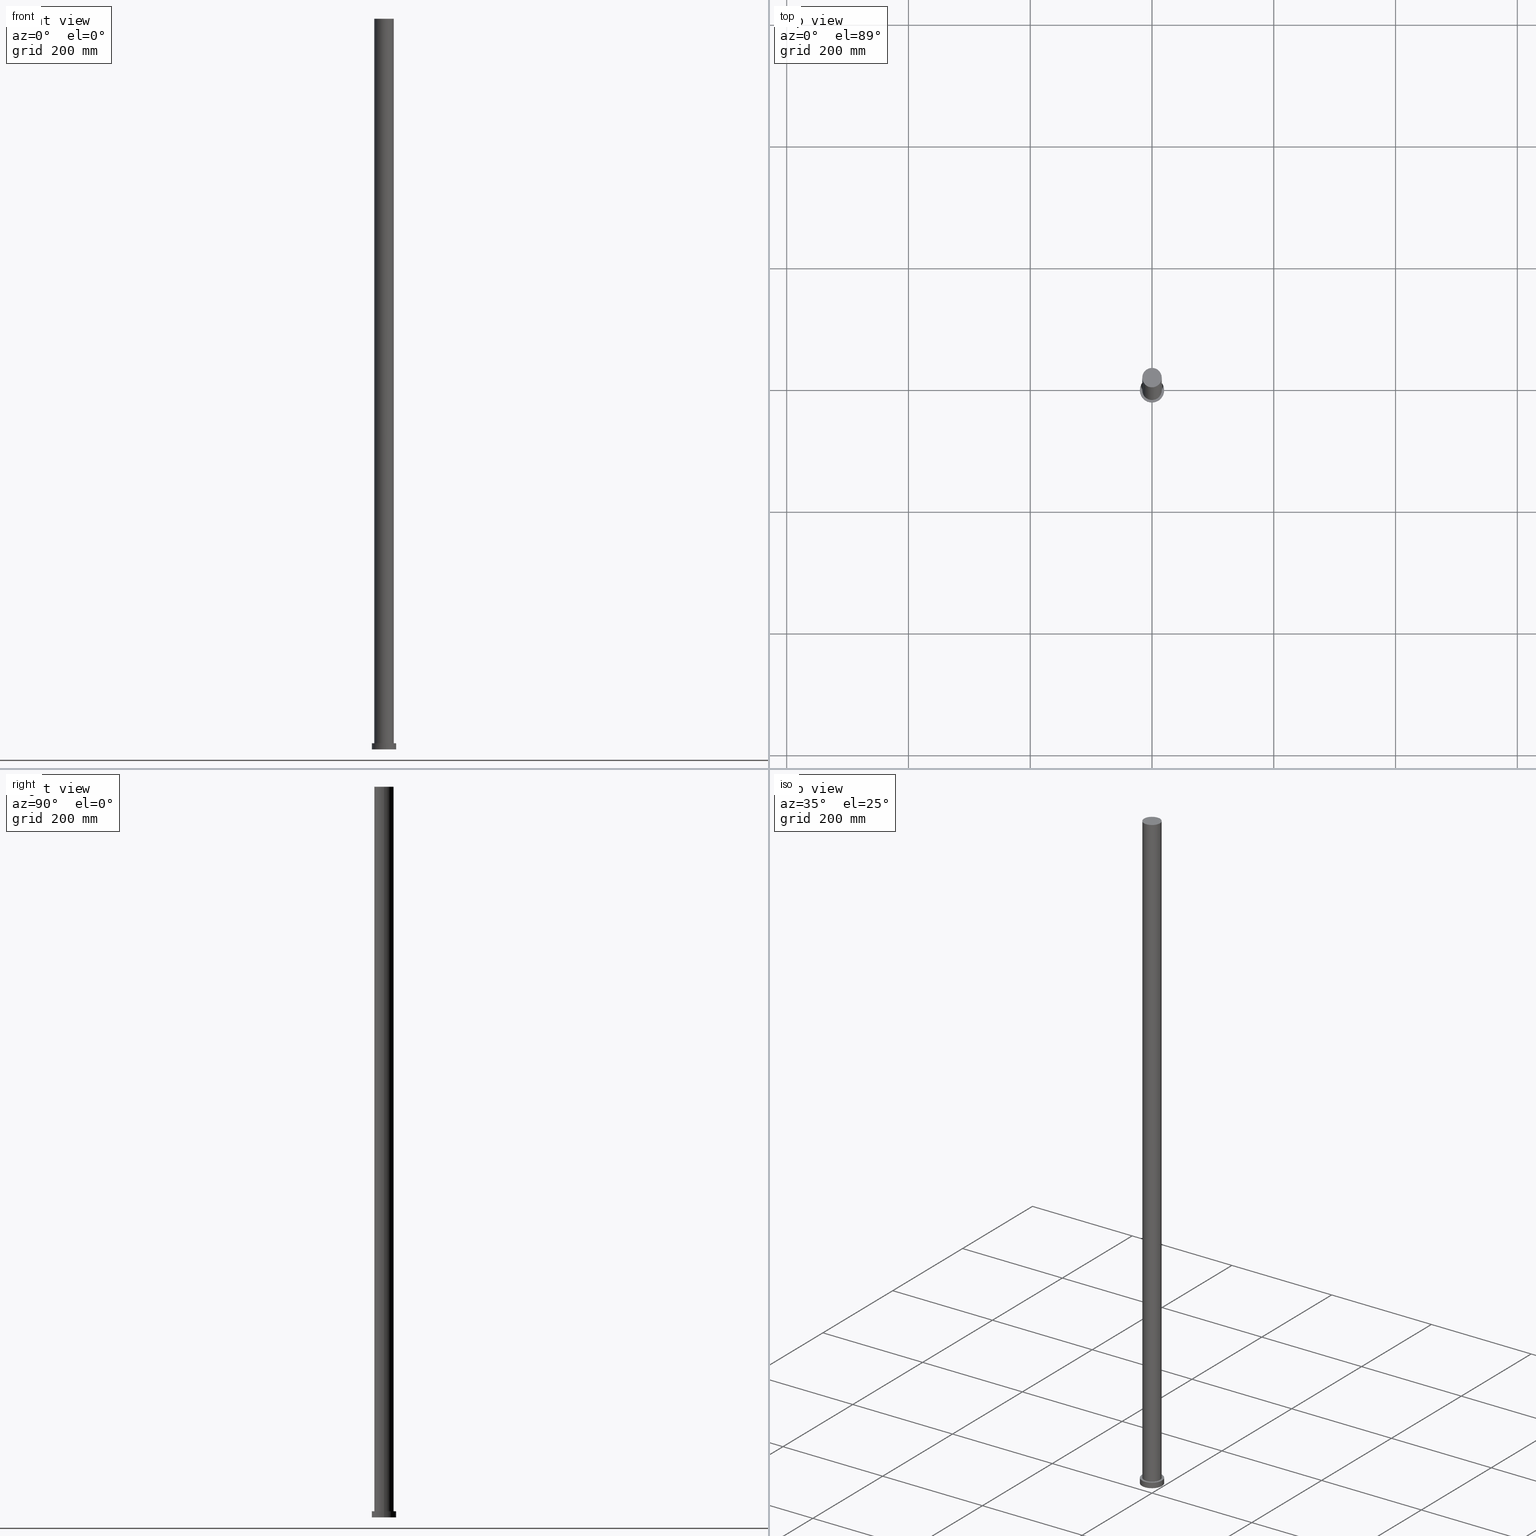
[diagram: canonical four-view strip — front | top / right | iso, engineering-drawing reading convention]
A machine part, canonical four-view strip (front | top / right | iso — engineering-drawing reading convention). The complete STEP part file that produces these views, byte-faithful:
ISO-10303-21;
HEADER;
FILE_DESCRIPTION (( 'STEP AP203' ),
    '1' );
FILE_NAME ('3a21.STEP',
    '2023-02-12T10:05:44',
    ( '' ),
    ( '' ),
    'SwSTEP 2.0',
    'SolidWorks 2019',
    '' );
FILE_SCHEMA (( 'CONFIG_CONTROL_DESIGN' ));
ENDSEC;

DATA;
#1 = PERSON_AND_ORGANIZATION ( #19, #49 ) ;
#2 = COORDINATED_UNIVERSAL_TIME_OFFSET ( 1, 0, .AHEAD. ) ;
#3 = DATE_TIME_ROLE ( 'creation_date' ) ;
#4 = AXIS2_PLACEMENT_3D ( 'NONE', #105, #143, #87 ) ;
#5 = PRODUCT ( '3a21', '3a21', '', ( #38 ) ) ;
#6 = COORDINATED_UNIVERSAL_TIME_OFFSET ( 1, 0, .AHEAD. ) ;
#7 = ORIENTED_EDGE ( 'NONE', *, *, #228, .T. ) ;
#8 = APPROVAL_DATE_TIME ( #202, #27 ) ;
#9 = VERTEX_POINT ( 'NONE', #102 ) ;
#10 = ORIENTED_EDGE ( 'NONE', *, *, #204, .T. ) ;
#11 = ORIENTED_EDGE ( 'NONE', *, *, #128, .T. ) ;
#12 = DIRECTION ( 'NONE',  ( 1.000000000000000000, 0.000000000000000000, 0.000000000000000000 ) ) ;
#13 = DIRECTION ( 'NONE',  ( 1.000000000000000000, 0.000000000000000000, -0.000000000000000000 ) ) ;
#14 = APPROVAL_PERSON_ORGANIZATION ( #1, #233, #135 ) ;
#15 = CYLINDRICAL_SURFACE ( 'NONE', #182, 16.00000000000000000 ) ;
#16 = PLANE ( 'NONE',  #214 ) ;
#17 = CARTESIAN_POINT ( 'NONE',  ( 0.000000000000000000, 0.000000000000000000, 10.00000000000000000 ) ) ;
#18 = APPROVAL_ROLE ( '' ) ;
#19 = PERSON ( 'NEUR�EN�', 'NEUR�EN�', 'NEUR�EN�', ('NEUR�EN�'), ('NEUR�EN�'), ('NEUR�EN�') ) ;
#20 = VERTEX_POINT ( 'NONE', #248 ) ;
#21 = DIRECTION ( 'NONE',  ( 0.000000000000000000, 0.000000000000000000, 1.000000000000000000 ) ) ;
#22 = ORIENTED_EDGE ( 'NONE', *, *, #137, .T. ) ;
#23 = EDGE_LOOP ( 'NONE', ( #7, #222 ) ) ;
#24 = ORIENTED_EDGE ( 'NONE', *, *, #139, .T. ) ;
#25 = CARTESIAN_POINT ( 'NONE',  ( 0.000000000000000000, 0.000000000000000000, 10.00000000000000000 ) ) ;
#26 = LINE ( 'NONE', #106, #206 ) ;
#27 = APPROVAL ( #247, 'NEUR�EN�' ) ;
#28 = CYLINDRICAL_SURFACE ( 'NONE', #217, 20.00000000000000000 ) ;
#29 = DIRECTION ( 'NONE',  ( -1.000000000000000000, 0.000000000000000000, 0.000000000000000000 ) ) ;
#30 = DIRECTION ( 'NONE',  ( -0.000000000000000000, -0.000000000000000000, -1.000000000000000000 ) ) ;
#31 = APPROVAL_STATUS ( 'not_yet_approved' ) ;
#32 = APPROVAL_PERSON_ORGANIZATION ( #181, #27, #199 ) ;
#33 = PERSON_AND_ORGANIZATION ( #19, #49 ) ;
#34 = ADVANCED_FACE ( 'NONE', ( #219, #243 ), #223, .T. ) ;
#35 = PERSON_AND_ORGANIZATION ( #19, #49 ) ;
#36 = LOCAL_TIME ( 11, 5, 44.00000000000000000, #161 ) ;
#37 = AXIS2_PLACEMENT_3D ( 'NONE', #227, #127, #46 ) ;
#38 = MECHANICAL_CONTEXT ( 'NONE', #153, 'mechanical' ) ;
#39 = ORIENTED_EDGE ( 'NONE', *, *, #113, .F. ) ;
#40 = CALENDAR_DATE ( 2023, 12, 2 ) ;
#41 = DIRECTION ( 'NONE',  ( 1.000000000000000000, 0.000000000000000000, -0.000000000000000000 ) ) ;
#42 = ORIENTED_EDGE ( 'NONE', *, *, #170, .T. ) ;
#43 = ORIENTED_EDGE ( 'NONE', *, *, #137, .F. ) ;
#44 = DIRECTION ( 'NONE',  ( 0.000000000000000000, 0.000000000000000000, 1.000000000000000000 ) ) ;
#45 = LOCAL_TIME ( 11, 5, 44.00000000000000000, #6 ) ;
#46 = DIRECTION ( 'NONE',  ( 1.000000000000000000, 0.000000000000000000, 0.000000000000000000 ) ) ;
#47 = DIRECTION ( 'NONE',  ( -1.000000000000000000, 0.000000000000000000, 0.000000000000000000 ) ) ;
#48 = CARTESIAN_POINT ( 'NONE',  ( 0.000000000000000000, 0.000000000000000000, 10.00000000000000000 ) ) ;
#49 = ORGANIZATION ( 'NEUR�EN�', 'NEUR�EN�', '' ) ;
#50 = CARTESIAN_POINT ( 'NONE',  ( 0.000000000000000000, 0.000000000000000000, 1200.000000000000000 ) ) ;
#51 = CARTESIAN_POINT ( 'NONE',  ( 16.00000000000000000, 1.959434878635765131E-15, 10.00000000000000000 ) ) ;
#52 = DIRECTION ( 'NONE',  ( 0.000000000000000000, 0.000000000000000000, 1.000000000000000000 ) ) ;
#53 = AXIS2_PLACEMENT_3D ( 'NONE', #209, #187, #29 ) ;
#54 = VECTOR ( 'NONE', #226, 1000.000000000000000 ) ;
#55 = APPROVAL_STATUS ( 'not_yet_approved' ) ;
#56 = COORDINATED_UNIVERSAL_TIME_OFFSET ( 1, 0, .AHEAD. ) ;
#57 =( NAMED_UNIT ( * ) PLANE_ANGLE_UNIT ( ) SI_UNIT ( $, .RADIAN. ) );
#58 = DIRECTION ( 'NONE',  ( -0.000000000000000000, -0.000000000000000000, -1.000000000000000000 ) ) ;
#59 = CC_DESIGN_PERSON_AND_ORGANIZATION_ASSIGNMENT ( #194, #175, ( #149 ) ) ;
#60 = VERTEX_POINT ( 'NONE', #244 ) ;
#61 = DATE_TIME_ROLE ( 'classification_date' ) ;
#62 = ORIENTED_EDGE ( 'NONE', *, *, #139, .F. ) ;
#63 = AXIS2_PLACEMENT_3D ( 'NONE', #17, #125, #91 ) ;
#64 = CC_DESIGN_SECURITY_CLASSIFICATION ( #231, ( #118 ) ) ;
#65 = EDGE_CURVE ( 'NONE', #9, #85, #147, .T. ) ;
#66 = EDGE_CURVE ( 'NONE', #60, #85, #123, .T. ) ;
#67 = ORIENTED_EDGE ( 'NONE', *, *, #117, .F. ) ;
#68 = VERTEX_POINT ( 'NONE', #136 ) ;
#69 = FACE_OUTER_BOUND ( 'NONE', #162, .T. ) ;
#70 = CIRCLE ( 'NONE', #191, 20.00000000000000000 ) ;
#71 = DIRECTION ( 'NONE',  ( 1.000000000000000000, 0.000000000000000000, 0.000000000000000000 ) ) ;
#72 = DIRECTION ( 'NONE',  ( 0.000000000000000000, 0.000000000000000000, 1.000000000000000000 ) ) ;
#73 = FACE_OUTER_BOUND ( 'NONE', #220, .T. ) ;
#74 = DIRECTION ( 'NONE',  ( 0.000000000000000000, 0.000000000000000000, 1.000000000000000000 ) ) ;
#75 = COORDINATED_UNIVERSAL_TIME_OFFSET ( 1, 0, .AHEAD. ) ;
#76 = ADVANCED_FACE ( 'NONE', ( #253 ), #28, .T. ) ;
#77 = DIRECTION ( 'NONE',  ( -1.000000000000000000, 0.000000000000000000, 0.000000000000000000 ) ) ;
#78 = CIRCLE ( 'NONE', #37, 16.00000000000000000 ) ;
#79 = EDGE_LOOP ( 'NONE', ( #140, #42, #24, #43 ) ) ;
#80 = VECTOR ( 'NONE', #58, 1000.000000000000000 ) ;
#81 = PRODUCT_RELATED_PRODUCT_CATEGORY ( 'detail', '', ( #5 ) ) ;
#82 = ORIENTED_EDGE ( 'NONE', *, *, #198, .F. ) ;
#83 = ORIENTED_EDGE ( 'NONE', *, *, #170, .F. ) ;
#84 = CC_DESIGN_APPROVAL ( #233, ( #118 ) ) ;
#85 = VERTEX_POINT ( 'NONE', #144 ) ;
#86 = DIRECTION ( 'NONE',  ( 0.000000000000000000, 0.000000000000000000, 1.000000000000000000 ) ) ;
#87 = DIRECTION ( 'NONE',  ( 1.000000000000000000, 0.000000000000000000, 0.000000000000000000 ) ) ;
#88 = CIRCLE ( 'NONE', #252, 20.00000000000000000 ) ;
#89 = LINE ( 'NONE', #168, #165 ) ;
#90 = CARTESIAN_POINT ( 'NONE',  ( 0.000000000000000000, 0.000000000000000000, 1200.000000000000000 ) ) ;
#91 = DIRECTION ( 'NONE',  ( 1.000000000000000000, 0.000000000000000000, 0.000000000000000000 ) ) ;
#92 = PERSON_AND_ORGANIZATION ( #19, #49 ) ;
#93 = EDGE_CURVE ( 'NONE', #85, #9, #124, .T. ) ;
#94 = PERSON_AND_ORGANIZATION_ROLE ( 'design_owner' ) ;
#95 = CC_DESIGN_PERSON_AND_ORGANIZATION_ASSIGNMENT ( #35, #94, ( #5 ) ) ;
#96 = SECURITY_CLASSIFICATION_LEVEL ( 'unclassified' ) ;
#97 = AXIS2_PLACEMENT_3D ( 'NONE', #50, #212, #13 ) ;
#98 = CARTESIAN_POINT ( 'NONE',  ( 0.000000000000000000, 0.000000000000000000, 10.00000000000000000 ) ) ;
#99 = APPROVAL_PERSON_ORGANIZATION ( #173, #107, #18 ) ;
#100 = VERTEX_POINT ( 'NONE', #51 ) ;
#101 = ORIENTED_EDGE ( 'NONE', *, *, #93, .F. ) ;
#102 = CARTESIAN_POINT ( 'NONE',  ( 20.00000000000000000, 2.449293598294706513E-15, 0.000000000000000000 ) ) ;
#103 = ORIENTED_EDGE ( 'NONE', *, *, #93, .T. ) ;
#104 = DIRECTION ( 'NONE',  ( -0.000000000000000000, -0.000000000000000000, -1.000000000000000000 ) ) ;
#105 = CARTESIAN_POINT ( 'NONE',  ( 0.000000000000000000, 0.000000000000000000, 10.00000000000000000 ) ) ;
#106 = CARTESIAN_POINT ( 'NONE',  ( -16.00000000000000000, 0.000000000000000000, 1200.000000000000000 ) ) ;
#107 = APPROVAL ( #55, 'NEUR�EN�' ) ;
#108 = CARTESIAN_POINT ( 'NONE',  ( 20.00000000000000000, 2.449293598294706513E-15, 10.00000000000000000 ) ) ;
#109 = CARTESIAN_POINT ( 'NONE',  ( 0.000000000000000000, 0.000000000000000000, 10.00000000000000000 ) ) ;
#110 = AXIS2_PLACEMENT_3D ( 'NONE', #210, #72, #12 ) ;
#111 = CALENDAR_DATE ( 2023, 12, 2 ) ;
#112 = PERSON_AND_ORGANIZATION_ROLE ( 'classification_officer' ) ;
#113 = EDGE_CURVE ( 'NONE', #185, #9, #89, .T. ) ;
#114 = APPLICATION_PROTOCOL_DEFINITION ( 'international standard', 'config_control_design', 1994, #241 ) ;
#115 = DATE_AND_TIME ( #111, #150 ) ;
#116 = DATE_AND_TIME ( #40, #36 ) ;
#117 = EDGE_CURVE ( 'NONE', #185, #60, #70, .T. ) ;
#118 = PRODUCT_DEFINITION_FORMATION_WITH_SPECIFIED_SOURCE ( 'LIBOVOLN�', '', #5, .NOT_KNOWN. ) ;
#119 = ORIENTED_EDGE ( 'NONE', *, *, #66, .F. ) ;
#120 = ORIENTED_EDGE ( 'NONE', *, *, #66, .T. ) ;
#121 = ORIENTED_EDGE ( 'NONE', *, *, #198, .T. ) ;
#122 = PRODUCT_DEFINITION_SHAPE ( 'NONE', 'NONE',  #149 ) ;
#123 = LINE ( 'NONE', #207, #80 ) ;
#124 = CIRCLE ( 'NONE', #110, 20.00000000000000000 ) ;
#125 = DIRECTION ( 'NONE',  ( 0.000000000000000000, 0.000000000000000000, 1.000000000000000000 ) ) ;
#126 = ADVANCED_FACE ( 'NONE', ( #131 ), #234, .T. ) ;
#127 = DIRECTION ( 'NONE',  ( 0.000000000000000000, 0.000000000000000000, 1.000000000000000000 ) ) ;
#128 = EDGE_CURVE ( 'NONE', #158, #68, #78, .T. ) ;
#129 = DIRECTION ( 'NONE',  ( -0.000000000000000000, -0.000000000000000000, -1.000000000000000000 ) ) ;
#130 = CARTESIAN_POINT ( 'NONE',  ( 0.000000000000000000, 0.000000000000000000, 0.000000000000000000 ) ) ;
#131 = FACE_OUTER_BOUND ( 'NONE', #179, .T. ) ;
#132 = UNCERTAINTY_MEASURE_WITH_UNIT (LENGTH_MEASURE( 1.000000000000000082E-05 ), #213, 'distance_accuracy_value', 'NONE');
#133 = DATE_AND_TIME ( #193, #195 ) ;
#134 = CC_DESIGN_DATE_AND_TIME_ASSIGNMENT ( #240, #3, ( #149 ) ) ;
#135 = APPROVAL_ROLE ( '' ) ;
#136 = CARTESIAN_POINT ( 'NONE',  ( -16.00000000000000000, 0.000000000000000000, 1200.000000000000000 ) ) ;
#137 = EDGE_CURVE ( 'NONE', #68, #20, #26, .T. ) ;
#138 = ORIENTED_EDGE ( 'NONE', *, *, #65, .F. ) ;
#139 = EDGE_CURVE ( 'NONE', #100, #20, #224, .T. ) ;
#140 = ORIENTED_EDGE ( 'NONE', *, *, #128, .F. ) ;
#141 = ORIENTED_EDGE ( 'NONE', *, *, #228, .F. ) ;
#142 = CYLINDRICAL_SURFACE ( 'NONE', #53, 16.00000000000000000 ) ;
#143 = DIRECTION ( 'NONE',  ( 0.000000000000000000, 0.000000000000000000, 1.000000000000000000 ) ) ;
#144 = CARTESIAN_POINT ( 'NONE',  ( -20.00000000000000000, 0.000000000000000000, 0.000000000000000000 ) ) ;
#145 = CARTESIAN_POINT ( 'NONE',  ( 0.000000000000000000, 0.000000000000000000, 10.00000000000000000 ) ) ;
#146 = AXIS2_PLACEMENT_3D ( 'NONE', #255, #74, #208 ) ;
#147 = CIRCLE ( 'NONE', #169, 20.00000000000000000 ) ;
#148 = DIRECTION ( 'NONE',  ( 1.000000000000000000, 0.000000000000000000, 0.000000000000000000 ) ) ;
#149 = PRODUCT_DEFINITION ( 'NEZN�M�', '', #118, #190 ) ;
#150 = LOCAL_TIME ( 11, 5, 44.00000000000000000, #2 ) ;
#151 =( NAMED_UNIT ( * ) SI_UNIT ( $, .STERADIAN. ) SOLID_ANGLE_UNIT ( ) );
#152 = ADVANCED_FACE ( 'NONE', ( #251 ), #16, .F. ) ;
#153 = APPLICATION_CONTEXT ( 'configuration controlled 3d designs of mechanical parts and assemblies' ) ;
#154 = EDGE_LOOP ( 'NONE', ( #82, #62 ) ) ;
#155 = ORIENTED_EDGE ( 'NONE', *, *, #65, .T. ) ;
#156 = MANIFOLD_SOLID_BREP ( 'P�idat vysunut�m3', #242 ) ;
#157 = CALENDAR_DATE ( 2023, 12, 2 ) ;
#158 = VERTEX_POINT ( 'NONE', #211 ) ;
#159 = AXIS2_PLACEMENT_3D ( 'NONE', #235, #52, #148 ) ;
#160 = EDGE_LOOP ( 'NONE', ( #101, #138 ) ) ;
#161 = COORDINATED_UNIVERSAL_TIME_OFFSET ( 1, 0, .AHEAD. ) ;
#162 = EDGE_LOOP ( 'NONE', ( #39, #141, #120, #103 ) ) ;
#163 = DIRECTION ( 'NONE',  ( 1.000000000000000000, 0.000000000000000000, 0.000000000000000000 ) ) ;
#164 = DIRECTION ( 'NONE',  ( 0.000000000000000000, 0.000000000000000000, 1.000000000000000000 ) ) ;
#165 = VECTOR ( 'NONE', #129, 1000.000000000000000 ) ;
#166 = DIRECTION ( 'NONE',  ( -1.000000000000000000, 0.000000000000000000, 0.000000000000000000 ) ) ;
#167 = DIRECTION ( 'NONE',  ( -0.000000000000000000, -0.000000000000000000, -1.000000000000000000 ) ) ;
#168 = CARTESIAN_POINT ( 'NONE',  ( 20.00000000000000000, 2.449293598294706513E-15, 10.00000000000000000 ) ) ;
#169 = AXIS2_PLACEMENT_3D ( 'NONE', #201, #21, #178 ) ;
#170 = EDGE_CURVE ( 'NONE', #158, #100, #188, .T. ) ;
#171 = ADVANCED_FACE ( 'NONE', ( #189 ), #15, .T. ) ;
#172 = PERSON_AND_ORGANIZATION ( #19, #49 ) ;
#173 = PERSON_AND_ORGANIZATION ( #19, #49 ) ;
#174 = APPROVAL_DATE_TIME ( #133, #107 ) ;
#175 = PERSON_AND_ORGANIZATION_ROLE ( 'creator' ) ;
#176 = CIRCLE ( 'NONE', #146, 16.00000000000000000 ) ;
#177 = CC_DESIGN_PERSON_AND_ORGANIZATION_ASSIGNMENT ( #33, #112, ( #231 ) ) ;
#178 = DIRECTION ( 'NONE',  ( 1.000000000000000000, 0.000000000000000000, 0.000000000000000000 ) ) ;
#179 = EDGE_LOOP ( 'NONE', ( #10, #11 ) ) ;
#180 = ADVANCED_FACE ( 'NONE', ( #73 ), #142, .T. ) ;
#181 = PERSON_AND_ORGANIZATION ( #19, #49 ) ;
#182 = AXIS2_PLACEMENT_3D ( 'NONE', #90, #167, #47 ) ;
#183 = EDGE_LOOP ( 'NONE', ( #67, #203, #155, #119 ) ) ;
#184 = CC_DESIGN_PERSON_AND_ORGANIZATION_ASSIGNMENT ( #172, #216, ( #118 ) ) ;
#185 = VERTEX_POINT ( 'NONE', #108 ) ;
#186 = CARTESIAN_POINT ( 'NONE',  ( 16.00000000000000000, 1.959434878635765131E-15, 1200.000000000000000 ) ) ;
#187 = DIRECTION ( 'NONE',  ( -0.000000000000000000, -0.000000000000000000, -1.000000000000000000 ) ) ;
#188 = LINE ( 'NONE', #186, #54 ) ;
#189 = FACE_OUTER_BOUND ( 'NONE', #79, .T. ) ;
#190 = DESIGN_CONTEXT ( 'detailed design', #241, 'design' ) ;
#191 = AXIS2_PLACEMENT_3D ( 'NONE', #145, #249, #71 ) ;
#192 = CC_DESIGN_DATE_AND_TIME_ASSIGNMENT ( #116, #61, ( #231 ) ) ;
#193 = CALENDAR_DATE ( 2023, 12, 2 ) ;
#194 = PERSON_AND_ORGANIZATION ( #19, #49 ) ;
#195 = LOCAL_TIME ( 11, 5, 44.00000000000000000, #56 ) ;
#196 = APPROVAL_DATE_TIME ( #115, #233 ) ;
#197 = CC_DESIGN_PERSON_AND_ORGANIZATION_ASSIGNMENT ( #92, #239, ( #118 ) ) ;
#198 = EDGE_CURVE ( 'NONE', #20, #100, #200, .T. ) ;
#199 = APPROVAL_ROLE ( '' ) ;
#200 = CIRCLE ( 'NONE', #63, 16.00000000000000000 ) ;
#201 = CARTESIAN_POINT ( 'NONE',  ( 0.000000000000000000, 0.000000000000000000, 0.000000000000000000 ) ) ;
#202 = DATE_AND_TIME ( #157, #45 ) ;
#203 = ORIENTED_EDGE ( 'NONE', *, *, #113, .T. ) ;
#204 = EDGE_CURVE ( 'NONE', #68, #158, #176, .T. ) ;
#205 = ORIENTED_EDGE ( 'NONE', *, *, #204, .F. ) ;
#206 = VECTOR ( 'NONE', #229, 1000.000000000000000 ) ;
#207 = CARTESIAN_POINT ( 'NONE',  ( -20.00000000000000000, 0.000000000000000000, 10.00000000000000000 ) ) ;
#208 = DIRECTION ( 'NONE',  ( 1.000000000000000000, 0.000000000000000000, 0.000000000000000000 ) ) ;
#209 = CARTESIAN_POINT ( 'NONE',  ( 0.000000000000000000, 0.000000000000000000, 1200.000000000000000 ) ) ;
#210 = CARTESIAN_POINT ( 'NONE',  ( 0.000000000000000000, 0.000000000000000000, 0.000000000000000000 ) ) ;
#211 = CARTESIAN_POINT ( 'NONE',  ( 16.00000000000000000, 1.959434878635765131E-15, 1200.000000000000000 ) ) ;
#212 = DIRECTION ( 'NONE',  ( 0.000000000000000000, 0.000000000000000000, 1.000000000000000000 ) ) ;
#213 =( LENGTH_UNIT ( ) NAMED_UNIT ( * ) SI_UNIT ( .MILLI., .METRE. ) );
#214 = AXIS2_PLACEMENT_3D ( 'NONE', #130, #164, #254 ) ;
#215 = CALENDAR_DATE ( 2023, 12, 2 ) ;
#216 = PERSON_AND_ORGANIZATION_ROLE ( 'design_supplier' ) ;
#217 = AXIS2_PLACEMENT_3D ( 'NONE', #48, #30, #166 ) ;
#218 = APPLICATION_PROTOCOL_DEFINITION ( 'international standard', 'config_control_design', 1994, #153 ) ;
#219 = FACE_BOUND ( 'NONE', #154, .T. ) ;
#220 = EDGE_LOOP ( 'NONE', ( #83, #205, #22, #121 ) ) ;
#221 = SHAPE_DEFINITION_REPRESENTATION ( #122, #245 ) ;
#222 = ORIENTED_EDGE ( 'NONE', *, *, #117, .T. ) ;
#223 = PLANE ( 'NONE',  #237 ) ;
#224 = CIRCLE ( 'NONE', #4, 16.00000000000000000 ) ;
#225 = CYLINDRICAL_SURFACE ( 'NONE', #246, 20.00000000000000000 ) ;
#226 = DIRECTION ( 'NONE',  ( -0.000000000000000000, -0.000000000000000000, -1.000000000000000000 ) ) ;
#227 = CARTESIAN_POINT ( 'NONE',  ( 0.000000000000000000, 0.000000000000000000, 1200.000000000000000 ) ) ;
#228 = EDGE_CURVE ( 'NONE', #60, #185, #88, .T. ) ;
#229 = DIRECTION ( 'NONE',  ( -0.000000000000000000, -0.000000000000000000, -1.000000000000000000 ) ) ;
#230 = ADVANCED_FACE ( 'NONE', ( #69 ), #225, .T. ) ;
#231 = SECURITY_CLASSIFICATION ( '', '', #96 ) ;
#232 = CC_DESIGN_APPROVAL ( #27, ( #231 ) ) ;
#233 = APPROVAL ( #31, 'NEUR�EN�' ) ;
#234 = PLANE ( 'NONE',  #97 ) ;
#235 = CARTESIAN_POINT ( 'NONE',  ( 0.000000000000000000, 0.000000000000000000, 0.000000000000000000 ) ) ;
#236 = LOCAL_TIME ( 11, 5, 44.00000000000000000, #75 ) ;
#237 = AXIS2_PLACEMENT_3D ( 'NONE', #98, #44, #41 ) ;
#238 =( GEOMETRIC_REPRESENTATION_CONTEXT ( 3 ) GLOBAL_UNCERTAINTY_ASSIGNED_CONTEXT ( ( #132 ) ) GLOBAL_UNIT_ASSIGNED_CONTEXT ( ( #213, #57, #151 ) ) REPRESENTATION_CONTEXT ( 'NONE', 'WORKASPACE' ) );
#239 = PERSON_AND_ORGANIZATION_ROLE ( 'creator' ) ;
#240 = DATE_AND_TIME ( #215, #236 ) ;
#241 = APPLICATION_CONTEXT ( 'configuration controlled 3d designs of mechanical parts and assemblies' ) ;
#242 = CLOSED_SHELL ( 'NONE', ( #171, #76, #230, #34, #152, #180, #126 ) ) ;
#243 = FACE_OUTER_BOUND ( 'NONE', #23, .T. ) ;
#244 = CARTESIAN_POINT ( 'NONE',  ( -20.00000000000000000, 0.000000000000000000, 10.00000000000000000 ) ) ;
#245 = ADVANCED_BREP_SHAPE_REPRESENTATION ( '3a21', ( #156, #159 ), #238 ) ;
#246 = AXIS2_PLACEMENT_3D ( 'NONE', #25, #104, #77 ) ;
#247 = APPROVAL_STATUS ( 'not_yet_approved' ) ;
#248 = CARTESIAN_POINT ( 'NONE',  ( -16.00000000000000000, 0.000000000000000000, 10.00000000000000000 ) ) ;
#249 = DIRECTION ( 'NONE',  ( 0.000000000000000000, 0.000000000000000000, 1.000000000000000000 ) ) ;
#250 = CC_DESIGN_APPROVAL ( #107, ( #149 ) ) ;
#251 = FACE_OUTER_BOUND ( 'NONE', #160, .T. ) ;
#252 = AXIS2_PLACEMENT_3D ( 'NONE', #109, #86, #163 ) ;
#253 = FACE_OUTER_BOUND ( 'NONE', #183, .T. ) ;
#254 = DIRECTION ( 'NONE',  ( 1.000000000000000000, 0.000000000000000000, -0.000000000000000000 ) ) ;
#255 = CARTESIAN_POINT ( 'NONE',  ( 0.000000000000000000, 0.000000000000000000, 1200.000000000000000 ) ) ;
ENDSEC;
END-ISO-10303-21;
